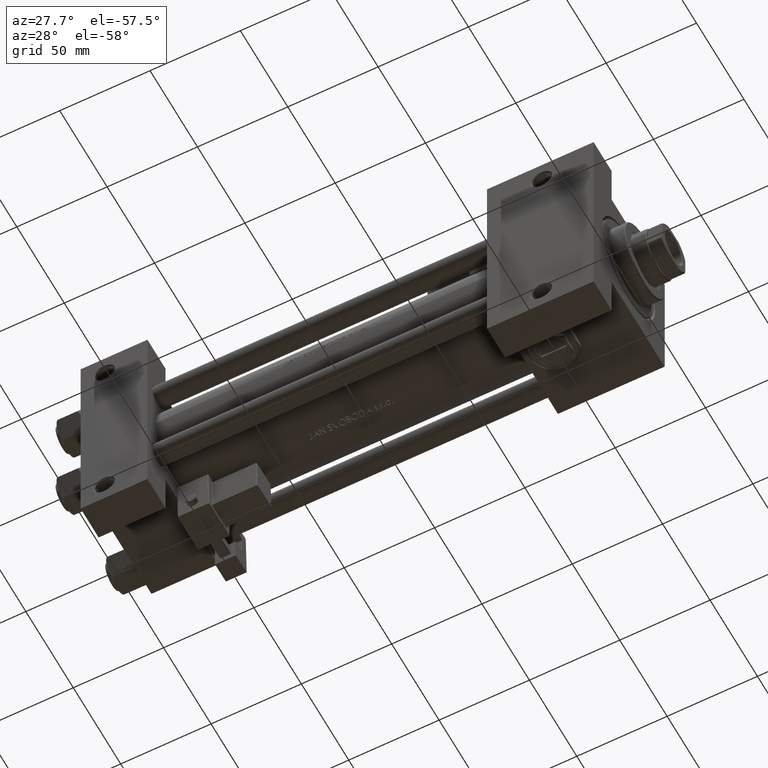
[diagram: clean part render]
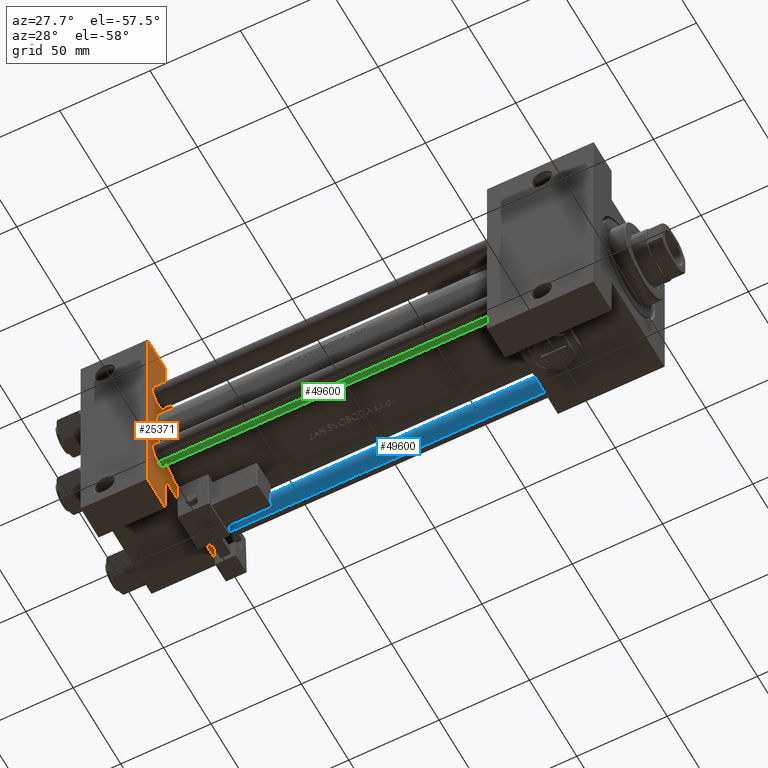
[diagram: same view with three faces highlighted in distinct colors, each labeled with its STEP entity id]
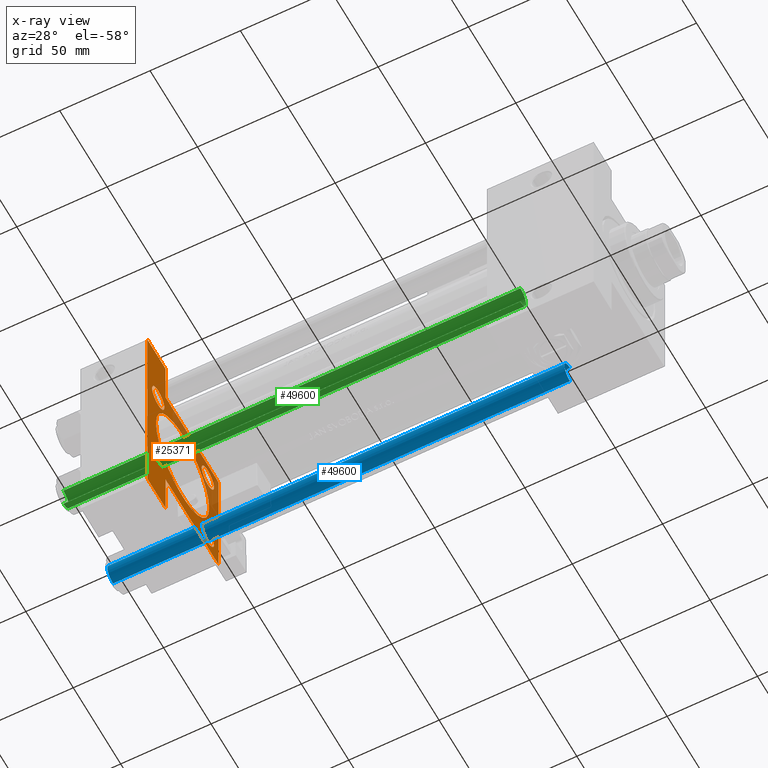
[diagram: x-ray of the same camera — body ghosted, the three highlighted faces saturated]
A machine part, auxiliary view with three faces highlighted in distinct colors.
The next image is the same camera in x-ray (body ghosted, the three faces saturated) — at least one of them is partly hidden behind the body in this view.
Their STEP definitions:

[orange] entity #25371 — the highlighted planar face has unit normal (-1, 0, -0).
#614 = EDGE_CURVE ( 'NONE', #31585, #2836, #18896, .T. ) ;
#1315 = CARTESIAN_POINT ( 'NONE',  ( 37.00000000000000000, 36.99999999999999289, 37.50000000000000000 ) ) ;
#1335 = CARTESIAN_POINT ( 'NONE',  ( 37.00000000000000000, 26.14999999999999858, 32.64999999999995595 ) ) ;
#1581 = VECTOR ( 'NONE', #20021, 1000.000000000000000 ) ;
#1638 = VERTEX_POINT ( 'NONE', #5212 ) ;
#1648 = VECTOR ( 'NONE', #48568, 1000.000000000000000 ) ;
#2005 = CARTESIAN_POINT ( 'NONE',  ( 37.00000000000000711, 3.429011037612589276E-15, -28.50000000000000000 ) ) ;
#2147 = CARTESIAN_POINT ( 'NONE',  ( 37.00000000000000000, -26.14999999999999147, 19.65000000000005542 ) ) ;
#2836 = VERTEX_POINT ( 'NONE', #2147 ) ;
#2841 = VERTEX_POINT ( 'NONE', #26653 ) ;
#3034 = EDGE_CURVE ( 'NONE', #12667, #31185, #48235, .T. ) ;
#3349 = CARTESIAN_POINT ( 'NONE',  ( 37.00000000000000000, 0.000000000000000000, 0.000000000000000000 ) ) ;
#3436 = CARTESIAN_POINT ( 'NONE',  ( 37.00000000000000000, -26.14999999999999147, 32.64999999999996305 ) ) ;
#3645 = DIRECTION ( 'NONE',  ( 0.000000000000000000, 0.000000000000000000, 1.000000000000000000 ) ) ;
#3881 = VERTEX_POINT ( 'NONE', #24187 ) ;
#4099 = LINE ( 'NONE', #43725, #1581 ) ;
#4100 = FACE_BOUND ( 'NONE', #10974, .T. ) ;
#4361 = VERTEX_POINT ( 'NONE', #26899 ) ;
#4531 = EDGE_CURVE ( 'NONE', #42116, #46146, #27325, .T. ) ;
#4957 = ORIENTED_EDGE ( 'NONE', *, *, #34795, .F. ) ;
#5191 = CARTESIAN_POINT ( 'NONE',  ( 37.00000000000000711, 37.50000000000000711, -18.50000000000000355 ) ) ;
#5195 = AXIS2_PLACEMENT_3D ( 'NONE', #37158, #13452, #29346 ) ;
#5212 = CARTESIAN_POINT ( 'NONE',  ( 37.00000000000000000, -26.14999999999999147, -19.65000000000006253 ) ) ;
#5475 = DIRECTION ( 'NONE',  ( 0.000000000000000000, 0.000000000000000000, 1.000000000000000000 ) ) ;
#6183 = EDGE_CURVE ( 'NONE', #24093, #3881, #33783, .T. ) ;
#6808 = VECTOR ( 'NONE', #32083, 1000.000000000000000 ) ;
#6973 = DIRECTION ( 'NONE',  ( -1.000000000000000000, 0.000000000000000000, -0.000000000000000000 ) ) ;
#7001 = FACE_BOUND ( 'NONE', #44297, .T. ) ;
#7052 = EDGE_CURVE ( 'NONE', #2836, #31585, #22667, .T. ) ;
#7526 = DIRECTION ( 'NONE',  ( 0.000000000000000000, 0.000000000000000000, 1.000000000000000000 ) ) ;
#7751 = PLANE ( 'NONE',  #31423 ) ;
#7914 = LINE ( 'NONE', #39719, #41243 ) ;
#8343 = CARTESIAN_POINT ( 'NONE',  ( 37.00000000000000000, -26.14999999999999147, 26.15000000000000924 ) ) ;
#8430 = EDGE_CURVE ( 'NONE', #47751, #25099, #32629, .T. ) ;
#8451 = ORIENTED_EDGE ( 'NONE', *, *, #7052, .T. ) ;
#8564 = CIRCLE ( 'NONE', #34390, 6.499999999999953815 ) ;
#9277 = ORIENTED_EDGE ( 'NONE', *, *, #614, .T. ) ;
#9412 = CARTESIAN_POINT ( 'NONE',  ( 37.00000000000000000, -37.50000000000000000, -18.50000000000000355 ) ) ;
#9427 = CIRCLE ( 'NONE', #38576, 6.499999999999946709 ) ;
#9483 = DIRECTION ( 'NONE',  ( -0.000000000000000000, 1.000000000000000000, 0.000000000000000000 ) ) ;
#9519 = ORIENTED_EDGE ( 'NONE', *, *, #6183, .T. ) ;
#9953 = ORIENTED_EDGE ( 'NONE', *, *, #24632, .T. ) ;
#10049 = DIRECTION ( 'NONE',  ( 0.000000000000000000, 0.000000000000000000, 1.000000000000000000 ) ) ;
#10095 = ORIENTED_EDGE ( 'NONE', *, *, #8430, .T. ) ;
#10274 = EDGE_CURVE ( 'NONE', #4361, #14721, #49325, .T. ) ;
#10974 = EDGE_LOOP ( 'NONE', ( #48366, #13386 ) ) ;
#11281 = CARTESIAN_POINT ( 'NONE',  ( 37.00000000000000000, -37.50000000000000711, 37.49999999999999289 ) ) ;
#11300 = LINE ( 'NONE', #1315, #36936 ) ;
#11938 = VERTEX_POINT ( 'NONE', #9412 ) ;
#11970 = CARTESIAN_POINT ( 'NONE',  ( 37.00000000000000000, -26.14999999999999147, -32.64999999999995595 ) ) ;
#12039 = ORIENTED_EDGE ( 'NONE', *, *, #28170, .F. ) ;
#12076 = VERTEX_POINT ( 'NONE', #11970 ) ;
#12523 = DIRECTION ( 'NONE',  ( 0.000000000000000000, -1.734723475976806848E-16, -1.000000000000000000 ) ) ;
#12593 = ORIENTED_EDGE ( 'NONE', *, *, #31968, .T. ) ;
#12667 = VERTEX_POINT ( 'NONE', #38946 ) ;
#12677 = CARTESIAN_POINT ( 'NONE',  ( 37.00000000000000711, 0.000000000000000000, 27.50000000000000000 ) ) ;
#13316 = CARTESIAN_POINT ( 'NONE',  ( 37.00000000000000000, -63.49999999999998579, 26.72167621838007889 ) ) ;
#13386 = ORIENTED_EDGE ( 'NONE', *, *, #27829, .F. ) ;
#13452 = DIRECTION ( 'NONE',  ( -1.000000000000000000, 0.000000000000000000, -0.000000000000000000 ) ) ;
#13473 = AXIS2_PLACEMENT_3D ( 'NONE', #31778, #20045, #7526 ) ;
#13475 = EDGE_CURVE ( 'NONE', #1638, #12076, #9427, .T. ) ;
#14398 = ORIENTED_EDGE ( 'NONE', *, *, #51360, .T. ) ;
#14721 = VERTEX_POINT ( 'NONE', #24290 ) ;
#14847 = CARTESIAN_POINT ( 'NONE',  ( 37.00000000000000000, 26.14999999999999858, 26.15000000000000213 ) ) ;
#14879 = CIRCLE ( 'NONE', #45664, 28.00000000000000000 ) ;
#15006 = EDGE_CURVE ( 'NONE', #12076, #1638, #47791, .T. ) ;
#15151 = AXIS2_PLACEMENT_3D ( 'NONE', #34621, #6973, #26537 ) ;
#15188 = AXIS2_PLACEMENT_3D ( 'NONE', #8343, #31328, #24004 ) ;
#15277 = ORIENTED_EDGE ( 'NONE', *, *, #13475, .T. ) ;
#15363 = AXIS2_PLACEMENT_3D ( 'NONE', #23966, #23722, #3645 ) ;
#15759 = CARTESIAN_POINT ( 'NONE',  ( 37.00000000000000000, -26.14999999999999147, -26.15000000000000924 ) ) ;
#16375 = VERTEX_POINT ( 'NONE', #5191 ) ;
#16780 = CARTESIAN_POINT ( 'NONE',  ( 37.00000000000001421, 63.50000000000000000, -18.50000000000000355 ) ) ;
#18634 = EDGE_LOOP ( 'NONE', ( #36929, #9519, #9953, #33472, #42659, #28460, #4957, #26903, #12039, #14398 ) ) ;
#18896 = CIRCLE ( 'NONE', #40485, 6.499999999999953815 ) ;
#19003 = FACE_BOUND ( 'NONE', #50308, .T. ) ;
#19250 = FACE_OUTER_BOUND ( 'NONE', #18634, .T. ) ;
#20021 = DIRECTION ( 'NONE',  ( 0.000000000000000000, 0.000000000000000000, -1.000000000000000000 ) ) ;
#20045 = DIRECTION ( 'NONE',  ( -1.000000000000000000, 0.000000000000000000, -0.000000000000000000 ) ) ;
#20599 = VECTOR ( 'NONE', #23037, 1000.000000000000000 ) ;
#21510 = EDGE_CURVE ( 'NONE', #44577, #24093, #7914, .T. ) ;
#21813 = CIRCLE ( 'NONE', #13473, 6.499999999999946709 ) ;
#22041 = CARTESIAN_POINT ( 'NONE',  ( 37.00000000000000000, -63.50000000000000000, -37.49999999999999289 ) ) ;
#22367 = EDGE_CURVE ( 'NONE', #12667, #11938, #26172, .T. ) ;
#22667 = CIRCLE ( 'NONE', #15188, 6.499999999999953815 ) ;
#23037 = DIRECTION ( 'NONE',  ( 0.000000000000000000, 9.251858538542971581E-17, -1.000000000000000000 ) ) ;
#23722 = DIRECTION ( 'NONE',  ( -1.000000000000000000, 0.000000000000000000, -0.000000000000000000 ) ) ;
#23966 = CARTESIAN_POINT ( 'NONE',  ( 37.00000000000000000, -26.14999999999999147, -26.15000000000000924 ) ) ;
#24004 = DIRECTION ( 'NONE',  ( 0.000000000000000000, 0.000000000000000000, 1.000000000000000000 ) ) ;
#24093 = VERTEX_POINT ( 'NONE', #40901 ) ;
#24187 = CARTESIAN_POINT ( 'NONE',  ( 37.00000000000000000, -37.50000000000000711, 36.99999999999999289 ) ) ;
#24290 = CARTESIAN_POINT ( 'NONE',  ( 37.00000000000000000, 26.14999999999999858, -19.65000000000005542 ) ) ;
#24291 = CARTESIAN_POINT ( 'NONE',  ( 37.00000000000000000, 36.99999999999999289, 37.50000000000000000 ) ) ;
#24632 = EDGE_CURVE ( 'NONE', #3881, #11938, #26946, .T. ) ;
#24871 = ORIENTED_EDGE ( 'NONE', *, *, #10274, .T. ) ;
#25044 = CARTESIAN_POINT ( 'NONE',  ( 37.00000000000000711, 0.000000000000000000, -0.5000000000000004441 ) ) ;
#25099 = VERTEX_POINT ( 'NONE', #46944 ) ;
#25371 = ADVANCED_FACE ( 'NONE', ( #7001, #19003, #27071, #43464, #4100, #19250 ), #7751, .F. ) ;
#25712 = CARTESIAN_POINT ( 'NONE',  ( 37.00000000000000000, -26.14999999999999147, 26.15000000000000924 ) ) ;
#26172 = LINE ( 'NONE', #41290, #33812 ) ;
#26537 = DIRECTION ( 'NONE',  ( 0.000000000000000000, 0.000000000000000000, 1.000000000000000000 ) ) ;
#26653 = CARTESIAN_POINT ( 'NONE',  ( 37.00000000000000000, 37.49999999999999289, 37.00000000000000000 ) ) ;
#26899 = CARTESIAN_POINT ( 'NONE',  ( 37.00000000000000000, 26.14999999999999858, -32.64999999999994884 ) ) ;
#26903 = ORIENTED_EDGE ( 'NONE', *, *, #48488, .F. ) ;
#26946 = LINE ( 'NONE', #11281, #20599 ) ;
#27071 = FACE_BOUND ( 'NONE', #39765, .T. ) ;
#27325 = CIRCLE ( 'NONE', #45666, 28.00000000000000000 ) ;
#27829 = EDGE_CURVE ( 'NONE', #46146, #42116, #14879, .T. ) ;
#27914 = CARTESIAN_POINT ( 'NONE',  ( 37.00000000000000000, 37.49999999999999289, -37.50000000000000000 ) ) ;
#28006 = DIRECTION ( 'NONE',  ( 0.000000000000000000, -1.000000000000000000, -9.251858538542971581E-17 ) ) ;
#28170 = EDGE_CURVE ( 'NONE', #2841, #16375, #4099, .T. ) ;
#28253 = DIRECTION ( 'NONE',  ( -1.000000000000000000, 0.000000000000000000, -0.000000000000000000 ) ) ;
#28460 = ORIENTED_EDGE ( 'NONE', *, *, #32676, .F. ) ;
#28483 = VECTOR ( 'NONE', #49929, 1000.000000000000114 ) ;
#29346 = DIRECTION ( 'NONE',  ( 0.000000000000000000, 0.000000000000000000, 1.000000000000000000 ) ) ;
#29494 = LINE ( 'NONE', #37303, #36824 ) ;
#29723 = DIRECTION ( 'NONE',  ( 1.000000000000000000, -0.000000000000000000, 0.000000000000000000 ) ) ;
#31185 = VERTEX_POINT ( 'NONE', #22041 ) ;
#31328 = DIRECTION ( 'NONE',  ( -1.000000000000000000, 0.000000000000000000, -0.000000000000000000 ) ) ;
#31423 = AXIS2_PLACEMENT_3D ( 'NONE', #3349, #34906, #32007 ) ;
#31585 = VERTEX_POINT ( 'NONE', #3436 ) ;
#31631 = EDGE_LOOP ( 'NONE', ( #41558, #10095 ) ) ;
#31778 = CARTESIAN_POINT ( 'NONE',  ( 37.00000000000000000, 26.14999999999999858, -26.15000000000000213 ) ) ;
#31968 = EDGE_CURVE ( 'NONE', #14721, #4361, #21813, .T. ) ;
#32007 = DIRECTION ( 'NONE',  ( -0.000000000000000000, 0.000000000000000000, 1.000000000000000000 ) ) ;
#32083 = DIRECTION ( 'NONE',  ( 0.000000000000000000, -1.000000000000000000, -9.251858538542972814E-17 ) ) ;
#32629 = CIRCLE ( 'NONE', #15151, 6.499999999999953815 ) ;
#32676 = EDGE_CURVE ( 'NONE', #41906, #31185, #32862, .T. ) ;
#32862 = LINE ( 'NONE', #27914, #6808 ) ;
#33472 = ORIENTED_EDGE ( 'NONE', *, *, #22367, .F. ) ;
#33783 = LINE ( 'NONE', #34809, #28483 ) ;
#33787 = DIRECTION ( 'NONE',  ( -1.000000000000000000, 0.000000000000000000, -0.000000000000000000 ) ) ;
#33812 = VECTOR ( 'NONE', #9483, 1000.000000000000000 ) ;
#34136 = DIRECTION ( 'NONE',  ( 0.000000000000000000, 0.000000000000000000, 1.000000000000000000 ) ) ;
#34260 = CARTESIAN_POINT ( 'NONE',  ( 37.00000000000000711, 0.000000000000000000, -0.5000000000000004441 ) ) ;
#34390 = AXIS2_PLACEMENT_3D ( 'NONE', #14847, #42204, #34136 ) ;
#34621 = CARTESIAN_POINT ( 'NONE',  ( 37.00000000000000000, 26.14999999999999858, 26.15000000000000213 ) ) ;
#34790 = VERTEX_POINT ( 'NONE', #16780 ) ;
#34795 = EDGE_CURVE ( 'NONE', #34790, #41906, #44912, .T. ) ;
#34809 = CARTESIAN_POINT ( 'NONE',  ( 37.00000000000000000, -37.50000000000000711, 36.99999999999999289 ) ) ;
#34906 = DIRECTION ( 'NONE',  ( -1.000000000000000000, 0.000000000000000000, -0.000000000000000000 ) ) ;
#35623 = VECTOR ( 'NONE', #12523, 1000.000000000000000 ) ;
#36824 = VECTOR ( 'NONE', #40431, 1000.000000000000000 ) ;
#36929 = ORIENTED_EDGE ( 'NONE', *, *, #21510, .T. ) ;
#36936 = VECTOR ( 'NONE', #44311, 1000.000000000000114 ) ;
#37158 = CARTESIAN_POINT ( 'NONE',  ( 37.00000000000000000, 26.14999999999999858, -26.15000000000000213 ) ) ;
#37303 = CARTESIAN_POINT ( 'NONE',  ( 37.00000000000001421, 63.50000000000001421, -18.50000000000000355 ) ) ;
#38009 = CARTESIAN_POINT ( 'NONE',  ( 37.00000000000001421, 63.50000000000000000, -37.50000000000002132 ) ) ;
#38419 = DIRECTION ( 'NONE',  ( 0.000000000000000000, 0.000000000000000000, 1.000000000000000000 ) ) ;
#38576 = AXIS2_PLACEMENT_3D ( 'NONE', #15759, #28253, #44141 ) ;
#38946 = CARTESIAN_POINT ( 'NONE',  ( 37.00000000000000000, -63.50000000000000000, -18.50000000000000355 ) ) ;
#39719 = CARTESIAN_POINT ( 'NONE',  ( 37.00000000000000000, 37.49999999999999289, 37.50000000000000000 ) ) ;
#39765 = EDGE_LOOP ( 'NONE', ( #8451, #9277 ) ) ;
#40431 = DIRECTION ( 'NONE',  ( 2.668805347656626678E-16, 1.000000000000000000, 0.000000000000000000 ) ) ;
#40485 = AXIS2_PLACEMENT_3D ( 'NONE', #25712, #33787, #10049 ) ;
#40901 = CARTESIAN_POINT ( 'NONE',  ( 37.00000000000000000, -37.00000000000000711, 37.49999999999999289 ) ) ;
#41243 = VECTOR ( 'NONE', #28006, 1000.000000000000000 ) ;
#41290 = CARTESIAN_POINT ( 'NONE',  ( 37.00000000000000000, -63.49999999999998579, -18.50000000000000355 ) ) ;
#41558 = ORIENTED_EDGE ( 'NONE', *, *, #49822, .T. ) ;
#41906 = VERTEX_POINT ( 'NONE', #38009 ) ;
#42116 = VERTEX_POINT ( 'NONE', #12677 ) ;
#42204 = DIRECTION ( 'NONE',  ( -1.000000000000000000, 0.000000000000000000, -0.000000000000000000 ) ) ;
#42659 = ORIENTED_EDGE ( 'NONE', *, *, #3034, .T. ) ;
#43464 = FACE_BOUND ( 'NONE', #31631, .T. ) ;
#43725 = CARTESIAN_POINT ( 'NONE',  ( 37.00000000000000000, 37.49999999999999289, 37.50000000000000000 ) ) ;
#44141 = DIRECTION ( 'NONE',  ( 0.000000000000000000, 0.000000000000000000, 1.000000000000000000 ) ) ;
#44297 = EDGE_LOOP ( 'NONE', ( #50673, #15277 ) ) ;
#44311 = DIRECTION ( 'NONE',  ( 0.000000000000000000, -0.7071067811865474617, 0.7071067811865474617 ) ) ;
#44577 = VERTEX_POINT ( 'NONE', #24291 ) ;
#44649 = CARTESIAN_POINT ( 'NONE',  ( 37.00000000000001421, 63.50000000000001421, 26.72167621838005047 ) ) ;
#44912 = LINE ( 'NONE', #44649, #1648 ) ;
#45664 = AXIS2_PLACEMENT_3D ( 'NONE', #34260, #46238, #38419 ) ;
#45666 = AXIS2_PLACEMENT_3D ( 'NONE', #25044, #29723, #5475 ) ;
#46146 = VERTEX_POINT ( 'NONE', #2005 ) ;
#46238 = DIRECTION ( 'NONE',  ( 1.000000000000000000, -0.000000000000000000, 0.000000000000000000 ) ) ;
#46944 = CARTESIAN_POINT ( 'NONE',  ( 37.00000000000000000, 26.14999999999999858, 19.65000000000005187 ) ) ;
#47751 = VERTEX_POINT ( 'NONE', #1335 ) ;
#47791 = CIRCLE ( 'NONE', #15363, 6.499999999999946709 ) ;
#48235 = LINE ( 'NONE', #13316, #35623 ) ;
#48366 = ORIENTED_EDGE ( 'NONE', *, *, #4531, .F. ) ;
#48488 = EDGE_CURVE ( 'NONE', #16375, #34790, #29494, .T. ) ;
#48568 = DIRECTION ( 'NONE',  ( 0.000000000000000000, -1.734723475976806848E-16, -1.000000000000000000 ) ) ;
#49325 = CIRCLE ( 'NONE', #5195, 6.499999999999946709 ) ;
#49822 = EDGE_CURVE ( 'NONE', #25099, #47751, #8564, .T. ) ;
#49929 = DIRECTION ( 'NONE',  ( -0.000000000000000000, -0.7071067811865474617, -0.7071067811865474617 ) ) ;
#50308 = EDGE_LOOP ( 'NONE', ( #24871, #12593 ) ) ;
#50673 = ORIENTED_EDGE ( 'NONE', *, *, #15006, .T. ) ;
#51360 = EDGE_CURVE ( 'NONE', #2841, #44577, #11300, .T. ) ;

[blue] entity #49600 — the highlighted cylindrical surface (edge-blend (fillet) strip) has radius 6 mm, axis along (1, -0, -0).
#1324 = ORIENTED_EDGE ( 'NONE', *, *, #11586, .T. ) ;
#1722 = DIRECTION ( 'NONE',  ( 1.000000000000000000, 0.000000000000000000, 0.000000000000000000 ) ) ;
#2750 = CIRCLE ( 'NONE', #47689, 6.000000000000000888 ) ;
#5768 = ORIENTED_EDGE ( 'NONE', *, *, #42883, .F. ) ;
#6251 = CARTESIAN_POINT ( 'NONE',  ( -6.000000000000000888, 0.000000000000000000, 254.0000000000000000 ) ) ;
#6516 = DIRECTION ( 'NONE',  ( -0.000000000000000000, -0.000000000000000000, -1.000000000000000000 ) ) ;
#7350 = EDGE_CURVE ( 'NONE', #31067, #30068, #41967, .T. ) ;
#7979 = CARTESIAN_POINT ( 'NONE',  ( 0.000000000000000000, 0.000000000000000000, 253.5000000000000568 ) ) ;
#8684 = EDGE_CURVE ( 'NONE', #30068, #31890, #10954, .T. ) ;
#10954 = CIRCLE ( 'NONE', #21811, 6.000000000000000888 ) ;
#10962 = DIRECTION ( 'NONE',  ( -0.000000000000000000, -0.000000000000000000, -1.000000000000000000 ) ) ;
#11586 = EDGE_CURVE ( 'NONE', #42074, #31067, #2750, .T. ) ;
#12037 = DIRECTION ( 'NONE',  ( -0.000000000000000000, -0.000000000000000000, -1.000000000000000000 ) ) ;
#12161 = DIRECTION ( 'NONE',  ( 0.000000000000000000, 0.000000000000000000, -1.000000000000000000 ) ) ;
#13184 = CARTESIAN_POINT ( 'NONE',  ( -6.000000000000000888, 0.000000000000000000, 253.5000000000000568 ) ) ;
#14264 = VECTOR ( 'NONE', #12037, 1000.000000000000000 ) ;
#15260 = AXIS2_PLACEMENT_3D ( 'NONE', #46689, #10962, #42782 ) ;
#18185 = ORIENTED_EDGE ( 'NONE', *, *, #8684, .T. ) ;
#21811 = AXIS2_PLACEMENT_3D ( 'NONE', #41338, #24933, #1722 ) ;
#22706 = VECTOR ( 'NONE', #6516, 1000.000000000000000 ) ;
#24933 = DIRECTION ( 'NONE',  ( -0.000000000000000000, -0.000000000000000000, 1.000000000000000000 ) ) ;
#26885 = FACE_OUTER_BOUND ( 'NONE', #50515, .T. ) ;
#30068 = VERTEX_POINT ( 'NONE', #31951 ) ;
#31067 = VERTEX_POINT ( 'NONE', #13184 ) ;
#31890 = VERTEX_POINT ( 'NONE', #37543 ) ;
#31951 = CARTESIAN_POINT ( 'NONE',  ( -6.000000000000000888, 0.000000000000000000, 0.5000000000000004441 ) ) ;
#32122 = LINE ( 'NONE', #32635, #14264 ) ;
#32237 = DIRECTION ( 'NONE',  ( 1.000000000000000000, 0.000000000000000000, 0.000000000000000000 ) ) ;
#32635 = CARTESIAN_POINT ( 'NONE',  ( 6.000000000000000888, 7.347880794884120722E-16, 254.0000000000000000 ) ) ;
#37543 = CARTESIAN_POINT ( 'NONE',  ( 6.000000000000000888, 7.347880794884120722E-16, 0.5000000000000004441 ) ) ;
#41338 = CARTESIAN_POINT ( 'NONE',  ( 0.000000000000000000, 0.000000000000000000, 0.5000000000000004441 ) ) ;
#41967 = LINE ( 'NONE', #6251, #22706 ) ;
#42074 = VERTEX_POINT ( 'NONE', #44209 ) ;
#42782 = DIRECTION ( 'NONE',  ( -1.000000000000000000, 0.000000000000000000, 0.000000000000000000 ) ) ;
#42883 = EDGE_CURVE ( 'NONE', #42074, #31890, #32122, .T. ) ;
#44209 = CARTESIAN_POINT ( 'NONE',  ( 6.000000000000000888, 7.347880794884120722E-16, 253.5000000000000568 ) ) ;
#46689 = CARTESIAN_POINT ( 'NONE',  ( 0.000000000000000000, 0.000000000000000000, 254.0000000000000000 ) ) ;
#47644 = ORIENTED_EDGE ( 'NONE', *, *, #7350, .T. ) ;
#47689 = AXIS2_PLACEMENT_3D ( 'NONE', #7979, #12161, #32237 ) ;
#49600 = ADVANCED_FACE ( 'NONE', ( #26885 ), #50596, .T. ) ;
#50515 = EDGE_LOOP ( 'NONE', ( #5768, #1324, #47644, #18185 ) ) ;
#50596 = CYLINDRICAL_SURFACE ( 'NONE', #15260, 6.000000000000000888 ) ;

[green] entity #49600 — the highlighted cylindrical surface (edge-blend (fillet) strip) has radius 6 mm, axis along (-1, 0, 0).
#1324 = ORIENTED_EDGE ( 'NONE', *, *, #11586, .T. ) ;
#1722 = DIRECTION ( 'NONE',  ( 1.000000000000000000, 0.000000000000000000, 0.000000000000000000 ) ) ;
#2750 = CIRCLE ( 'NONE', #47689, 6.000000000000000888 ) ;
#5768 = ORIENTED_EDGE ( 'NONE', *, *, #42883, .F. ) ;
#6251 = CARTESIAN_POINT ( 'NONE',  ( -6.000000000000000888, 0.000000000000000000, 254.0000000000000000 ) ) ;
#6516 = DIRECTION ( 'NONE',  ( -0.000000000000000000, -0.000000000000000000, -1.000000000000000000 ) ) ;
#7350 = EDGE_CURVE ( 'NONE', #31067, #30068, #41967, .T. ) ;
#7979 = CARTESIAN_POINT ( 'NONE',  ( 0.000000000000000000, 0.000000000000000000, 253.5000000000000568 ) ) ;
#8684 = EDGE_CURVE ( 'NONE', #30068, #31890, #10954, .T. ) ;
#10954 = CIRCLE ( 'NONE', #21811, 6.000000000000000888 ) ;
#10962 = DIRECTION ( 'NONE',  ( -0.000000000000000000, -0.000000000000000000, -1.000000000000000000 ) ) ;
#11586 = EDGE_CURVE ( 'NONE', #42074, #31067, #2750, .T. ) ;
#12037 = DIRECTION ( 'NONE',  ( -0.000000000000000000, -0.000000000000000000, -1.000000000000000000 ) ) ;
#12161 = DIRECTION ( 'NONE',  ( 0.000000000000000000, 0.000000000000000000, -1.000000000000000000 ) ) ;
#13184 = CARTESIAN_POINT ( 'NONE',  ( -6.000000000000000888, 0.000000000000000000, 253.5000000000000568 ) ) ;
#14264 = VECTOR ( 'NONE', #12037, 1000.000000000000000 ) ;
#15260 = AXIS2_PLACEMENT_3D ( 'NONE', #46689, #10962, #42782 ) ;
#18185 = ORIENTED_EDGE ( 'NONE', *, *, #8684, .T. ) ;
#21811 = AXIS2_PLACEMENT_3D ( 'NONE', #41338, #24933, #1722 ) ;
#22706 = VECTOR ( 'NONE', #6516, 1000.000000000000000 ) ;
#24933 = DIRECTION ( 'NONE',  ( -0.000000000000000000, -0.000000000000000000, 1.000000000000000000 ) ) ;
#26885 = FACE_OUTER_BOUND ( 'NONE', #50515, .T. ) ;
#30068 = VERTEX_POINT ( 'NONE', #31951 ) ;
#31067 = VERTEX_POINT ( 'NONE', #13184 ) ;
#31890 = VERTEX_POINT ( 'NONE', #37543 ) ;
#31951 = CARTESIAN_POINT ( 'NONE',  ( -6.000000000000000888, 0.000000000000000000, 0.5000000000000004441 ) ) ;
#32122 = LINE ( 'NONE', #32635, #14264 ) ;
#32237 = DIRECTION ( 'NONE',  ( 1.000000000000000000, 0.000000000000000000, 0.000000000000000000 ) ) ;
#32635 = CARTESIAN_POINT ( 'NONE',  ( 6.000000000000000888, 7.347880794884120722E-16, 254.0000000000000000 ) ) ;
#37543 = CARTESIAN_POINT ( 'NONE',  ( 6.000000000000000888, 7.347880794884120722E-16, 0.5000000000000004441 ) ) ;
#41338 = CARTESIAN_POINT ( 'NONE',  ( 0.000000000000000000, 0.000000000000000000, 0.5000000000000004441 ) ) ;
#41967 = LINE ( 'NONE', #6251, #22706 ) ;
#42074 = VERTEX_POINT ( 'NONE', #44209 ) ;
#42782 = DIRECTION ( 'NONE',  ( -1.000000000000000000, 0.000000000000000000, 0.000000000000000000 ) ) ;
#42883 = EDGE_CURVE ( 'NONE', #42074, #31890, #32122, .T. ) ;
#44209 = CARTESIAN_POINT ( 'NONE',  ( 6.000000000000000888, 7.347880794884120722E-16, 253.5000000000000568 ) ) ;
#46689 = CARTESIAN_POINT ( 'NONE',  ( 0.000000000000000000, 0.000000000000000000, 254.0000000000000000 ) ) ;
#47644 = ORIENTED_EDGE ( 'NONE', *, *, #7350, .T. ) ;
#47689 = AXIS2_PLACEMENT_3D ( 'NONE', #7979, #12161, #32237 ) ;
#49600 = ADVANCED_FACE ( 'NONE', ( #26885 ), #50596, .T. ) ;
#50515 = EDGE_LOOP ( 'NONE', ( #5768, #1324, #47644, #18185 ) ) ;
#50596 = CYLINDRICAL_SURFACE ( 'NONE', #15260, 6.000000000000000888 ) ;